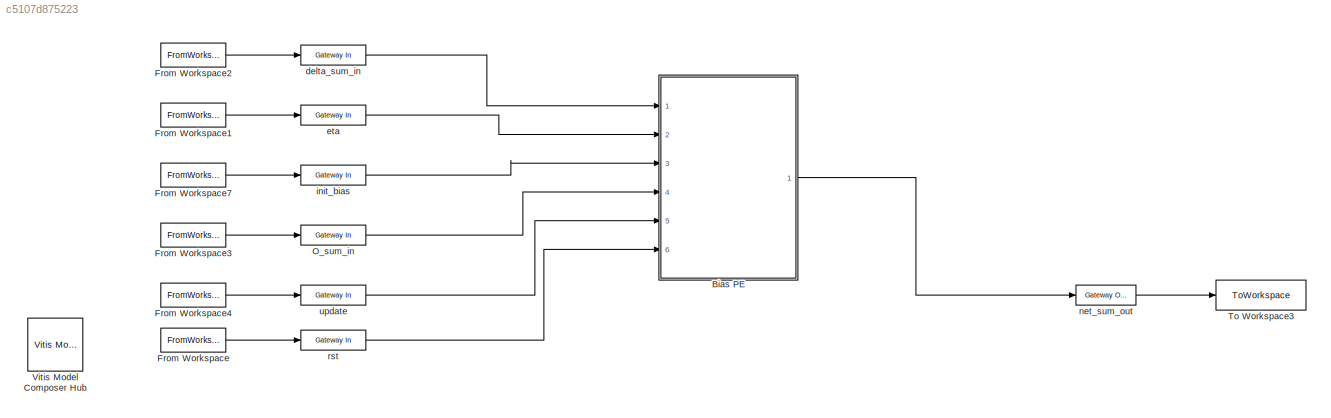
MODEL slx_c5107d875223
KIND model
CONFIG AbsTol = auto
CONFIG EnableMultiTasking = off
CONFIG FixedStep = auto
CONFIG MaxStep = auto
CONFIG MinStep = auto
CONFIG RelTol = 1e-3
CONFIG SampleTimeConstraint = Unconstrained
CONFIG SolverName = VariableStepAuto
CONFIG StartTime = 0.0
CONFIG StopTime = 10.0
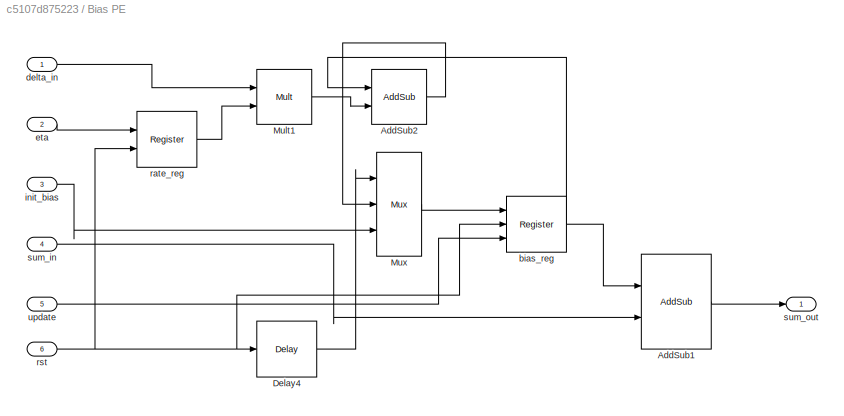
BLOCK [SubSystem] Bias PE
  Ports = [6, 1]
  RequestExecContextInheritance = off
BLOCK [Reference] Bias PE/AddSub1  REF=hdlBasic/AddSub
  Ports = [2, 1]
  SourceBlock = hdlBasic/AddSub
  SourceType = Adder/Subtracter Block
BLOCK [Reference] Bias PE/AddSub2  REF=hdlBasic/AddSub
  Ports = [2, 1]
  SourceBlock = hdlBasic/AddSub
  SourceType = Adder/Subtracter Block
BLOCK [Reference] Bias PE/Delay4  REF=hdlBasic/Delay
  Ports = [1, 1]
  SourceBlock = hdlBasic/Delay
  SourceType = Delay Block
BLOCK [Reference] Bias PE/Mult1  REF=hdlBasic/Mult
  Ports = [2, 1]
  SourceBlock = hdlBasic/Mult
  SourceType = Multiplier Block
BLOCK [Reference] Bias PE/Mux  REF=hdlBasic/Mux
  Ports = [3, 1]
  SourceBlock = hdlBasic/Mux
  SourceType = Bus Multiplexer Block
BLOCK [Reference] Bias PE/bias_reg  REF=hdlBasic/Register
  Ports = [3, 1]
  SourceBlock = hdlBasic/Register
  SourceType = Register Block
BLOCK [Inport] Bias PE/delta_in
BLOCK [Inport] Bias PE/eta
  Port = 2
BLOCK [Inport] Bias PE/init_bias
  Port = 3
BLOCK [Reference] Bias PE/rate_reg  REF=hdlBasic/Register
  Ports = [2, 1]
  SourceBlock = hdlBasic/Register
  SourceType = Register Block
BLOCK [Inport] Bias PE/rst
  Port = 6
BLOCK [Inport] Bias PE/sum_in
  Port = 4
BLOCK [Outport] Bias PE/sum_out
BLOCK [Inport] Bias PE/update
  Port = 5
BLOCK [FromWorkspace] From Workspace
  VariableName = rst
BLOCK [FromWorkspace] From Workspace1
  VariableName = eta
BLOCK [FromWorkspace] From Workspace2
  VariableName = delta_in
BLOCK [FromWorkspace] From Workspace3
  VariableName = o_sum_in
BLOCK [FromWorkspace] From Workspace4
  VariableName = update_in
BLOCK [FromWorkspace] From Workspace7
  VariableName = init_bias
BLOCK [Reference] O_sum_in  REF=hdlBasic/Gateway In
  Ports = [1, 1]
  SourceBlock = hdlBasic/Gateway In
  SourceType = Gateway In Block
BLOCK [ToWorkspace] To Workspace3
  FixptAsFi = on
  MaxDataPoints = inf
  Ports = [1]
  SampleTime = -1
  SaveFormat = Timeseries
  VariableName = net_sum
BLOCK [Reference] Vitis Model Composer Hub  REF=vmcUtilities/Vitis Model Composer Hub
  Ports = []
  SourceBlock = vmcUtilities/Vitis Model Composer Hub
  SourceType = VMC Hub
  Tag = genX
  UserDataPersistent = on
BLOCK [Reference] delta_sum_in  REF=hdlBasic/Gateway In
  Ports = [1, 1]
  SourceBlock = hdlBasic/Gateway In
  SourceType = Gateway In Block
BLOCK [Reference] eta  REF=hdlBasic/Gateway In
  Ports = [1, 1]
  SourceBlock = hdlBasic/Gateway In
  SourceType = Gateway In Block
BLOCK [Reference] init_bias  REF=hdlBasic/Gateway In
  Ports = [1, 1]
  SourceBlock = hdlBasic/Gateway In
  SourceType = Gateway In Block
BLOCK [Reference] net_sum_out  REF=hdlBasic/Gateway Out
  Ports = [1, 1]
  SourceBlock = hdlBasic/Gateway Out
  SourceType = Gateway Out Block
BLOCK [Reference] rst  REF=hdlBasic/Gateway In
  Ports = [1, 1]
  SourceBlock = hdlBasic/Gateway In
  SourceType = Gateway In Block
BLOCK [Reference] update  REF=hdlBasic/Gateway In
  Ports = [1, 1]
  SourceBlock = hdlBasic/Gateway In
  SourceType = Gateway In Block
LINE Bias PE/AddSub1:1 -> Bias PE/sum_out:1
LINE Bias PE/AddSub2:1 -> Bias PE/Mux:2
LINE Bias PE/Delay4:1 -> Bias PE/Mux:1
LINE Bias PE/Mult1:1 -> Bias PE/AddSub2:2
LINE Bias PE/Mux:1 -> Bias PE/bias_reg:1
NET Bias PE/bias_reg:1 -> Bias PE/AddSub1:1, Bias PE/AddSub2:1
LINE Bias PE/delta_in:1 -> Bias PE/Mult1:1
LINE Bias PE/eta:1 -> Bias PE/rate_reg:1
LINE Bias PE/init_bias:1 -> Bias PE/Mux:3
LINE Bias PE/rate_reg:1 -> Bias PE/Mult1:2
NET Bias PE/rst:1 -> Bias PE/Delay4:1, Bias PE/bias_reg:2, Bias PE/rate_reg:2
LINE Bias PE/sum_in:1 -> Bias PE/AddSub1:2
LINE Bias PE/update:1 -> Bias PE/bias_reg:3
LINE Bias PE:1 -> net_sum_out:1
LINE From Workspace1:1 -> eta:1
LINE From Workspace2:1 -> delta_sum_in:1
LINE From Workspace3:1 -> O_sum_in:1
LINE From Workspace4:1 -> update:1
LINE From Workspace7:1 -> init_bias:1
LINE From Workspace:1 -> rst:1
LINE O_sum_in:1 -> Bias PE:4
LINE delta_sum_in:1 -> Bias PE:1
LINE eta:1 -> Bias PE:2
LINE init_bias:1 -> Bias PE:3
LINE net_sum_out:1 -> To Workspace3:1
LINE rst:1 -> Bias PE:6
LINE update:1 -> Bias PE:5
note: NET lines group one-source signal fan-out (src -> all destinations, sorted); 1:1 wires keep LINE
